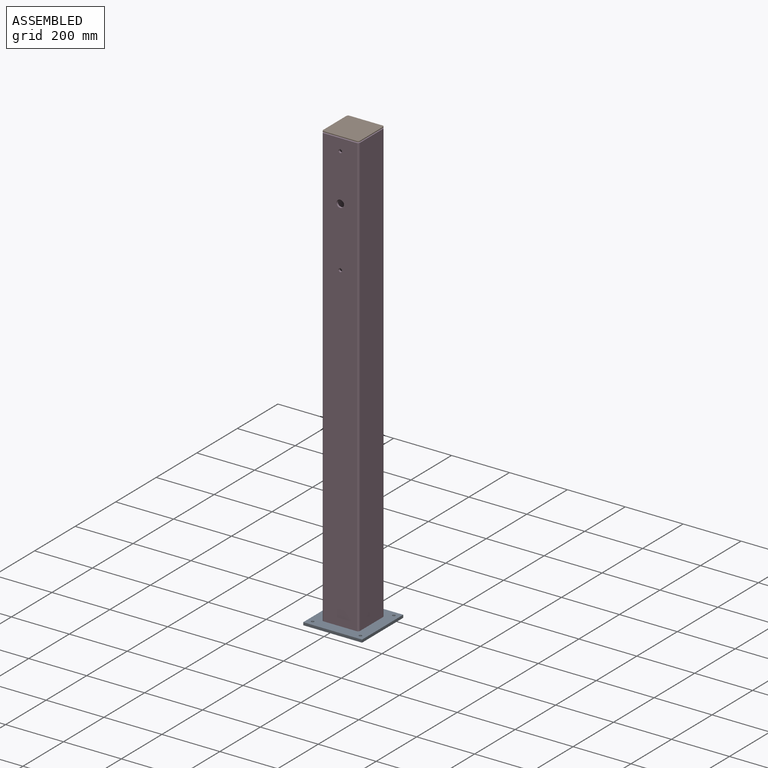
[diagram: assembled view]
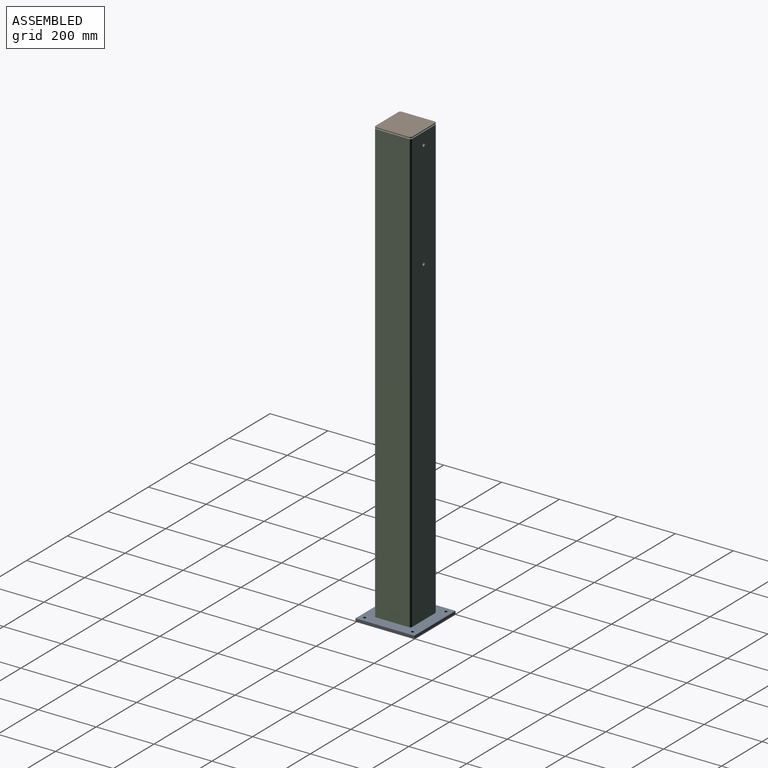
[diagram: assembled view, second angle]
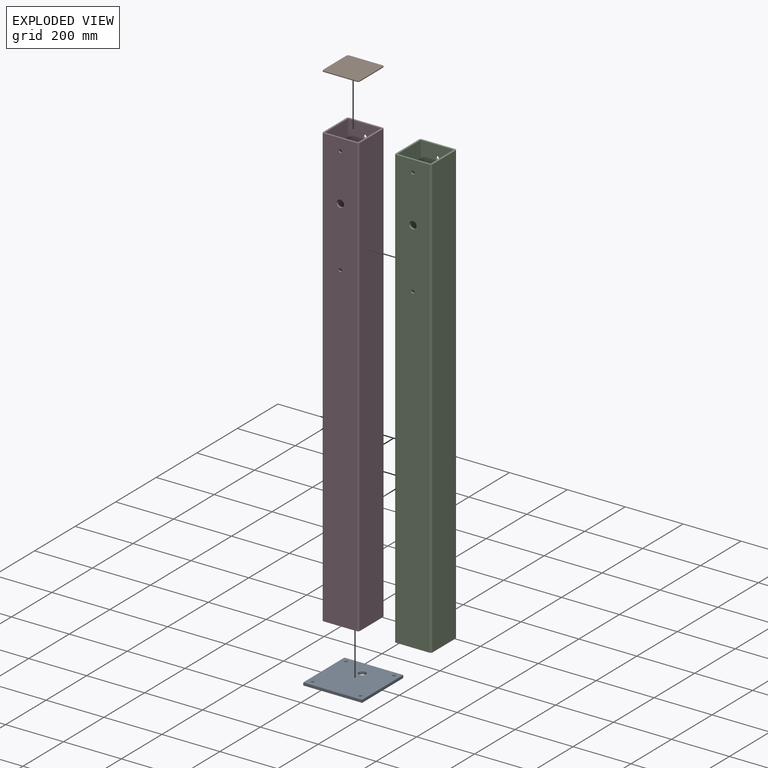
[diagram: exploded view]
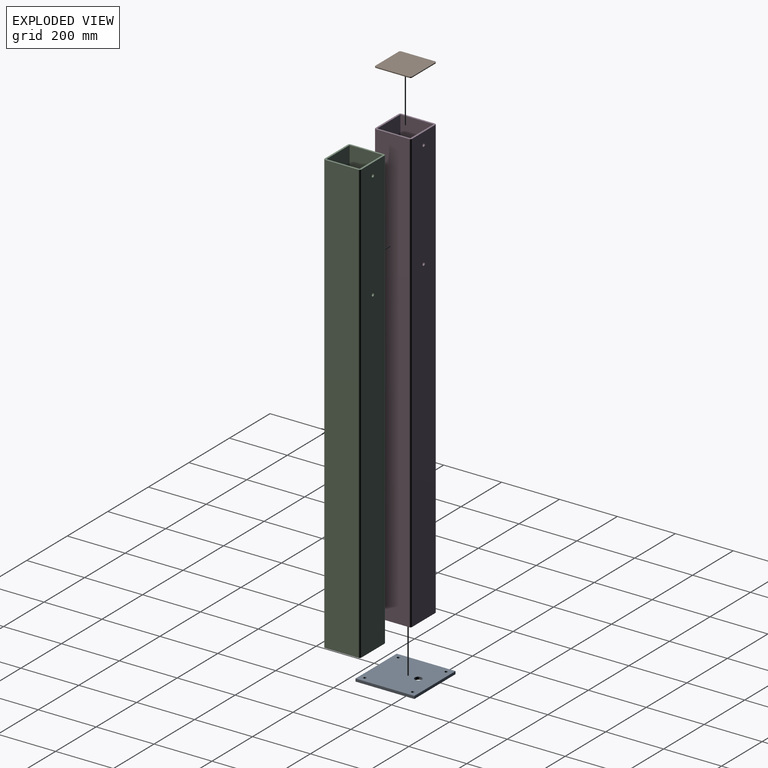
[diagram: exploded view, second angle]
ASSEMBLY  parts=4 mates=2
PART A: 11 faces, bbox 203.2x203.2x9.5 mm
  f0: plane 203.2x9.53mm, normal (1,0,0), area 1935.5mm2, adj f1,f3,f4,f5
  f1: plane 203.2x9.53mm, normal (0,1,0), area 1935.5mm2, adj f0,f2,f4,f5
  f2: plane 203.2x9.53mm, normal (-1,0,0), area 1935.5mm2, adj f1,f3,f4,f5
  f3: plane 203.2x9.53mm, normal (0,-1,0), area 1935.5mm2, adj f0,f2,f4,f5
  f4: plane 203.2x203.2mm, normal (0,0,1), area 40464.1mm2, adj f0,f1,f2,f3,f6,f7,f8,f9
  f5: plane 203.2x203.2mm, normal (0,0,-1), area 40464.1mm2, adj f0,f1,f2,f3,f6,f7,f8,f9
  f6: cylinder r=5.04mm len=10.08mm, axis (0,0,-1), area 301.7mm2, adj f4,f5
  f7: cylinder r=5.04mm len=10.08mm, axis (0,0,-1), area 301.7mm2, adj f4,f5
  f8: cylinder r=5.04mm len=10.08mm, axis (0,0,-1), area 301.7mm2, adj f4,f5
  f9: cylinder r=5.04mm len=10.08mm, axis (0,0,-1), area 301.7mm2, adj f4,f5
  f10: cylinder r=12.7mm len=25.4mm, axis (0,0,-1), area 760.1mm2, adj f4,f5
PART B: 15 faces, bbox 127x127x6.4 mm
  f0: plane 127x127mm, normal (0,0,-1), area 3029.9mm2, adj f1,f2,f3,f4,f5,f6,f7,f8
  f1: plane 114.3x3.18mm, normal (0,-1,0), area 362.9mm2, adj f0,f2,f8,f9
  f2: cylinder r=6.35mm len=6.35mm, axis (0,0,-1), area 31.7mm2, adj f0,f1,f3,f9
  f3: plane 114.3x3.18mm, normal (1,0,0), area 362.9mm2, adj f0,f2,f4,f9
  f4: cylinder r=6.35mm len=6.35mm, axis (0,0,-1), area 31.7mm2, adj f0,f3,f5,f9
  f5: plane 114.3x3.18mm, normal (0,1,0), area 362.9mm2, adj f0,f4,f6,f9
  f6: cylinder r=6.35mm len=6.35mm, axis (0,0,-1), area 31.7mm2, adj f0,f5,f7,f9
  f7: plane 114.3x3.18mm, normal (-1,0,0), area 362.9mm2, adj f0,f6,f8,f9
  f8: cylinder r=6.35mm len=6.35mm, axis (0,0,-1), area 31.7mm2, adj f0,f1,f7,f9
  f9: plane 127x127mm, normal (0,0,1), area 16094.4mm2, adj f1,f2,f3,f4,f5,f6,f7,f8
  f10: plane 114.3x3.18mm, normal (1,0,0), area 362.9mm2, adj f0,f11,f13,f14
  f11: plane 114.3x3.18mm, normal (0,1,0), area 362.9mm2, adj f0,f10,f12,f14
  f12: plane 114.3x3.18mm, normal (-1,0,0), area 362.9mm2, adj f0,f11,f13,f14
  f13: plane 114.3x3.18mm, normal (0,-1,0), area 362.9mm2, adj f0,f10,f12,f14
  f14: plane 114.3x114.3mm, normal (0,0,-1), area 13064.5mm2, adj f10,f11,f12,f13
PART C: 19 faces, bbox 127x127x1524 mm
  f0: plane 1524x114.3mm, normal (1,0,0), area 174193.2mm2, adj f1,f11,f12,f13
  f1: cylinder r=6.35mm len=1524mm, axis (0,0,-1), area 15201.2mm2, adj f0,f2,f12,f13
  f2: plane 1524x114.3mm, normal (0,1,0), area 173985.1mm2, adj f1,f3,f12,f13,f16,f17
  f3: cylinder r=6.35mm len=1524mm, axis (0,0,-1), area 15201.2mm2, adj f2,f4,f12,f13
  f4: plane 1524x114.3mm, normal (-1,0,0), area 174193.2mm2, adj f3,f5,f12,f13
  f5: cylinder r=6.35mm len=1524mm, axis (0,0,-1), area 15201.2mm2, adj f4,f6,f12,f13
  f6: plane 1524x114.3mm, normal (0,-1,0), area 173478.4mm2, adj f5,f11,f12,f13,f14,f15,f18
  f7: plane 1524x114.3mm, normal (1,0,0), area 174193.2mm2, adj f8,f10,f12,f13
  f8: plane 1524x114.3mm, normal (0,-1,0), area 173985.1mm2, adj f7,f9,f12,f13,f16,f17
  f9: plane 1524x114.3mm, normal (-1,0,0), area 174193.2mm2, adj f8,f10,f12,f13
  f10: plane 1524x114.3mm, normal (0,1,0), area 173478.4mm2, adj f7,f9,f12,f13,f14,f15,f18
  f11: cylinder r=6.35mm len=1524mm, axis (0,0,-1), area 15201.2mm2, adj f0,f6,f12,f13
  f12: plane 127x127mm, normal (0,0,1), area 3029.9mm2, adj f0,f1,f2,f3,f4,f5,f6,f7
  f13: plane 127x127mm, normal (0,0,-1), area 3029.9mm2, adj f0,f1,f2,f3,f4,f5,f6,f7
  f14: cylinder r=5.75mm len=11.51mm, axis (0,-1,0), area 229.6mm2, adj f6,f10
  f15: cylinder r=5.75mm len=11.51mm, axis (0,-1,0), area 229.6mm2, adj f6,f10
  f16: cylinder r=5.75mm len=11.51mm, axis (0,-1,0), area 229.6mm2, adj f2,f8
  f17: cylinder r=5.75mm len=11.51mm, axis (0,-1,0), area 229.6mm2, adj f2,f8
  f18: cylinder r=12.7mm len=25.4mm, axis (0,-1,0), area 506.7mm2, adj f6,f10
PART D: same geometry as C
PLACE A t=(-529.71,-42.09,380.49)mm
PLACE B t=(-529.71,-42.64,1917.19)mm
PLACE C t=(-529.71,-42.64,390.01)mm
PLACE D t=(-529.71,-42.64,390.01)mm
MATE fastened B.f14 <-> D.f12  axis (0,0,-1) through (-529.71,-42.64,1914.01)mm
MATE fastened A.f4 <-> D.f13  axis (0,0,1) through (-529.71,-42.64,390.01)mm
